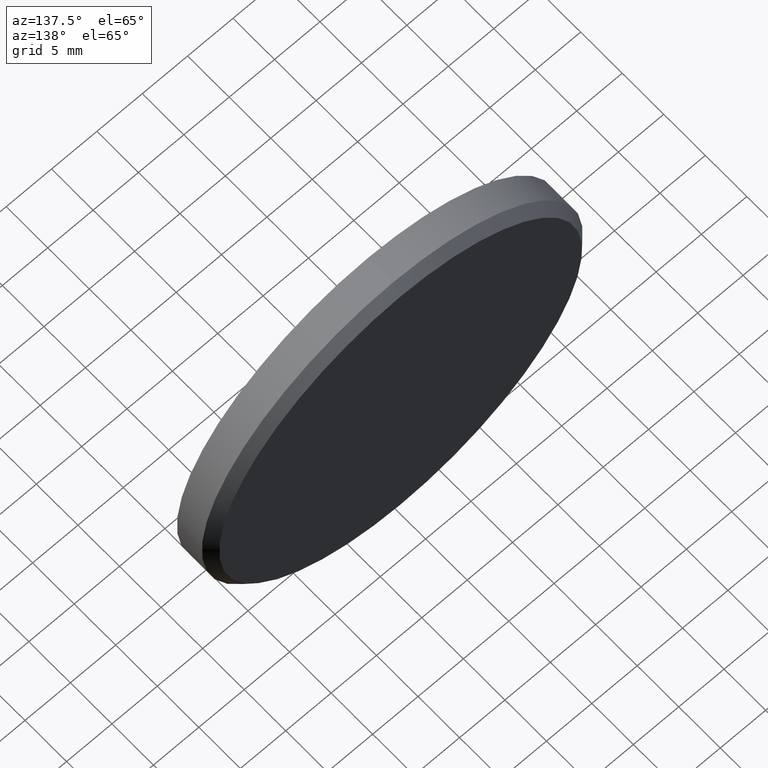
[diagram: clean part render]
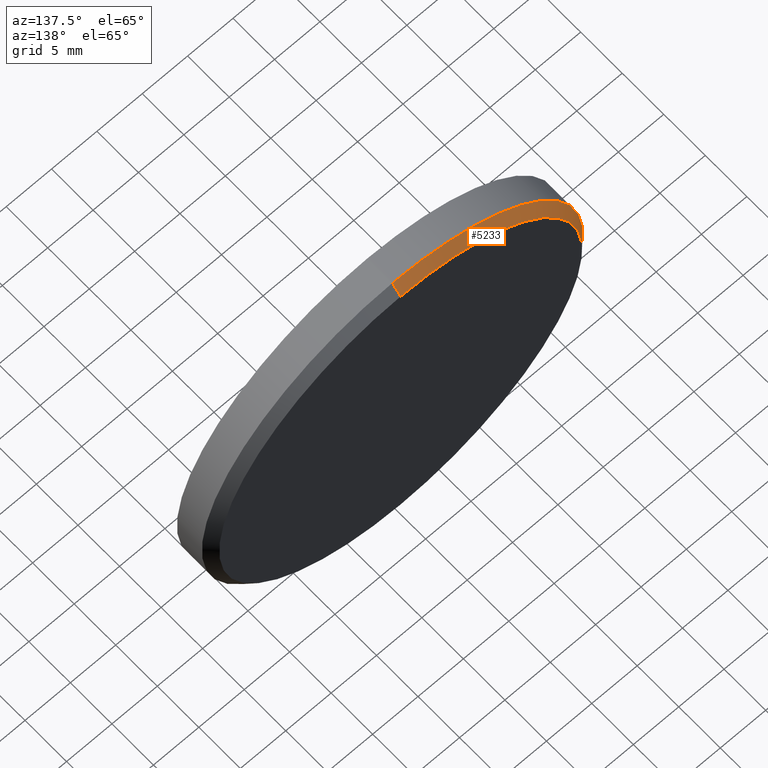
[diagram: same view with one face highlighted and labeled with its STEP entity id]
A machine part, auxiliary view. The second image highlights one B-rep face of the part: STEP entity #5233.
In plain terms, the highlighted conical surface has half-angle 45 deg.
Its self-contained STEP definition (entity closure, byte-faithful):
#568 = EDGE_CURVE ( 'NONE', #12596, #1781, #3608, .T. ) ;
#786 = CARTESIAN_POINT ( 'NONE',  ( 0.000000000000000000, 1.000000000000002665, 0.000000000000000000 ) ) ;
#804 = LINE ( 'NONE', #12561, #9317 ) ;
#900 = ORIENTED_EDGE ( 'NONE', *, *, #568, .T. ) ;
#940 = VERTEX_POINT ( 'NONE', #5940 ) ;
#1412 = VERTEX_POINT ( 'NONE', #3821 ) ;
#1589 = ORIENTED_EDGE ( 'NONE', *, *, #3043, .F. ) ;
#1781 = VERTEX_POINT ( 'NONE', #2270 ) ;
#2270 = CARTESIAN_POINT ( 'NONE',  ( 0.000000000000000000, 1.000000000000002665, -21.00000000000000000 ) ) ;
#2328 = FACE_OUTER_BOUND ( 'NONE', #12697, .T. ) ;
#2576 = VECTOR ( 'NONE', #6328, 1000.000000000000114 ) ;
#3043 = EDGE_CURVE ( 'NONE', #940, #1412, #804, .T. ) ;
#3263 = CARTESIAN_POINT ( 'NONE',  ( 0.000000000000000000, 2.000000000000000000, 0.000000000000000000 ) ) ;
#3608 = LINE ( 'NONE', #7289, #2576 ) ;
#3821 = CARTESIAN_POINT ( 'NONE',  ( 2.571758278209441661E-15, 1.000000000000002665, 21.00000000000000000 ) ) ;
#3854 = AXIS2_PLACEMENT_3D ( 'NONE', #6905, #10357, #6224 ) ;
#5233 = ADVANCED_FACE ( 'NONE', ( #2328 ), #7526, .T. ) ;
#5940 = CARTESIAN_POINT ( 'NONE',  ( 2.510525938252074481E-15, 2.000000000000000000, 20.00000000000001066 ) ) ;
#6224 = DIRECTION ( 'NONE',  ( 0.000000000000000000, 0.000000000000000000, -1.000000000000000000 ) ) ;
#6328 = DIRECTION ( 'NONE',  ( 0.000000000000000000, -0.7071067811865500152, -0.7071067811865451302 ) ) ;
#6905 = CARTESIAN_POINT ( 'NONE',  ( 0.000000000000000000, 2.000000000000000000, 0.000000000000000000 ) ) ;
#7289 = CARTESIAN_POINT ( 'NONE',  ( 0.000000000000000000, 2.000000000000000000, -20.00000000000001066 ) ) ;
#7329 = ORIENTED_EDGE ( 'NONE', *, *, #9339, .F. ) ;
#7524 = DIRECTION ( 'NONE',  ( 0.000000000000000000, 0.000000000000000000, 1.000000000000000000 ) ) ;
#7526 = CONICAL_SURFACE ( 'NONE', #3854, 20.00000000000001066, 0.7853981633974447263 ) ;
#8260 = CIRCLE ( 'NONE', #13851, 20.00000000000001066 ) ;
#8329 = CARTESIAN_POINT ( 'NONE',  ( 0.000000000000000000, 2.000000000000000000, -20.00000000000001066 ) ) ;
#8801 = DIRECTION ( 'NONE',  ( 0.000000000000000000, 1.000000000000000000, 0.000000000000000000 ) ) ;
#9317 = VECTOR ( 'NONE', #10645, 1000.000000000000114 ) ;
#9339 = EDGE_CURVE ( 'NONE', #1412, #1781, #12966, .T. ) ;
#10357 = DIRECTION ( 'NONE',  ( 0.000000000000000000, -1.000000000000000000, 0.000000000000000000 ) ) ;
#10645 = DIRECTION ( 'NONE',  ( 8.659560562354904508E-17, -0.7071067811865500152, 0.7071067811865451302 ) ) ;
#11744 = EDGE_CURVE ( 'NONE', #12596, #940, #8260, .T. ) ;
#12561 = CARTESIAN_POINT ( 'NONE',  ( 2.449293598294708091E-15, 2.000000000000000000, 20.00000000000001066 ) ) ;
#12596 = VERTEX_POINT ( 'NONE', #8329 ) ;
#12697 = EDGE_LOOP ( 'NONE', ( #1589, #14138, #900, #7329 ) ) ;
#12947 = DIRECTION ( 'NONE',  ( 0.000000000000000000, -1.000000000000000000, 0.000000000000000000 ) ) ;
#12966 = CIRCLE ( 'NONE', #13087, 21.00000000000000000 ) ;
#13087 = AXIS2_PLACEMENT_3D ( 'NONE', #786, #12947, #7524 ) ;
#13851 = AXIS2_PLACEMENT_3D ( 'NONE', #3263, #8801, #14185 ) ;
#14138 = ORIENTED_EDGE ( 'NONE', *, *, #11744, .F. ) ;
#14185 = DIRECTION ( 'NONE',  ( 0.000000000000000000, 0.000000000000000000, 1.000000000000000000 ) ) ;